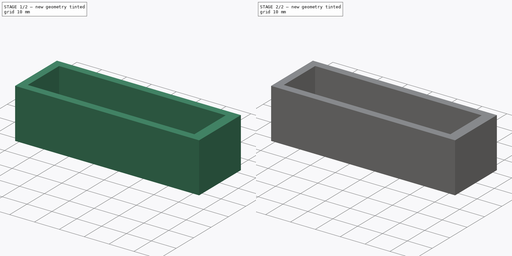
[diagram: build sequence overview — one tinted view per stage of 2, left to right]
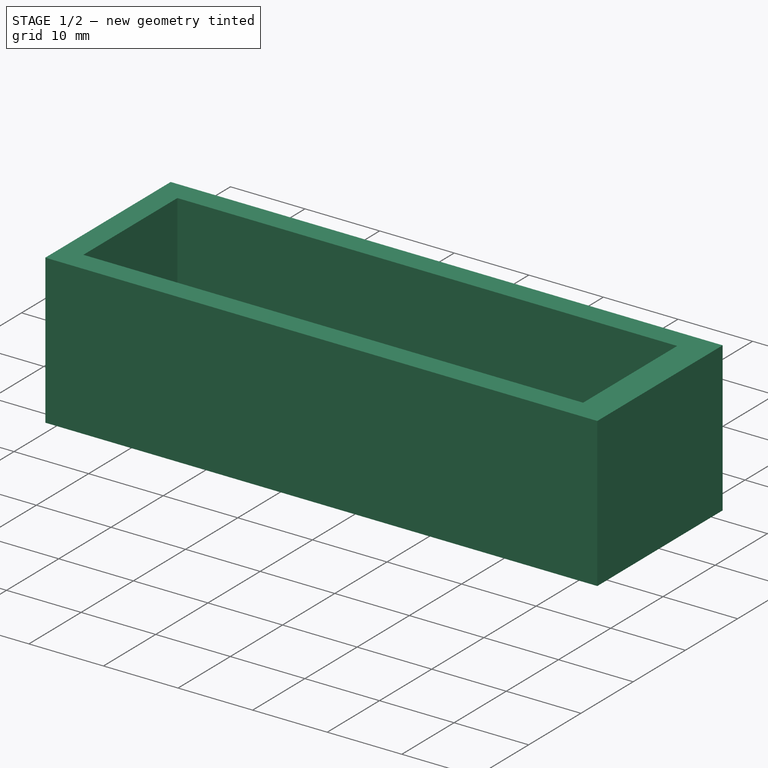
[diagram: stage 1 of 2 — iso view after this stage's code; geometry added in this stage tinted green]
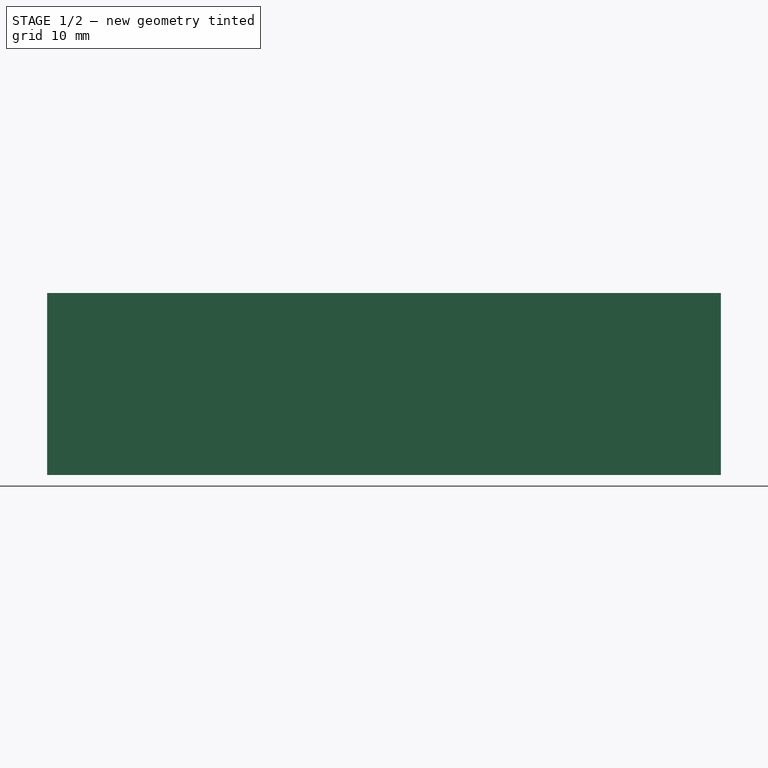
[diagram: stage 1 of 2 — front view after this stage's code; geometry added in this stage tinted green]
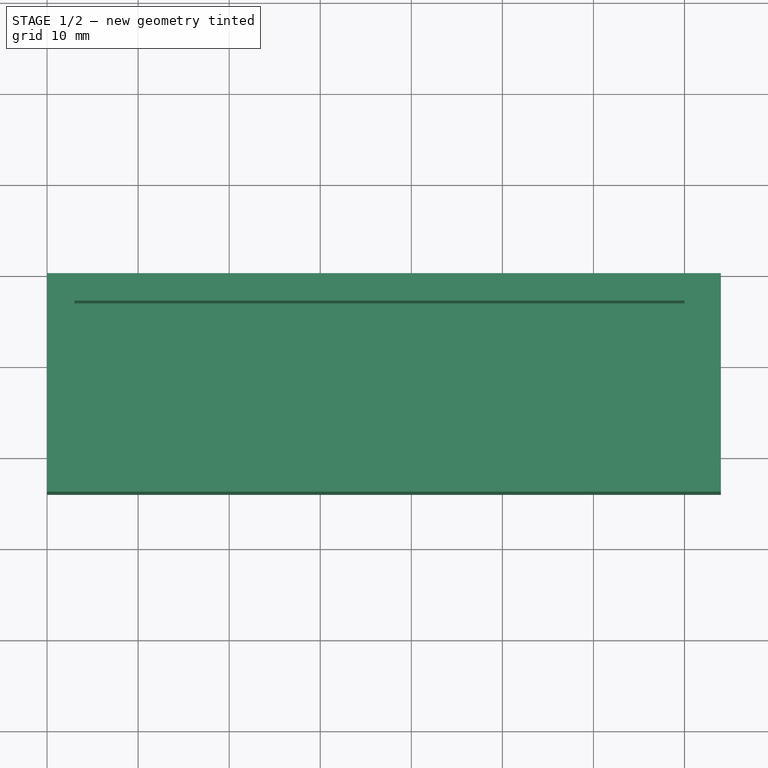
[diagram: stage 1 of 2 — top view after this stage's code; geometry added in this stage tinted green]
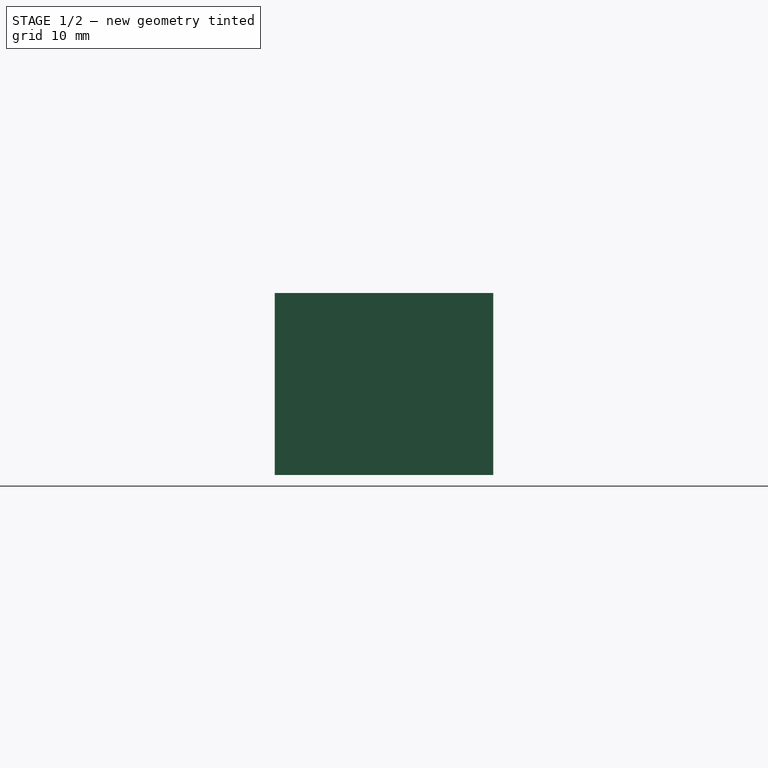
[diagram: stage 1 of 2 — right view after this stage's code; geometry added in this stage tinted green]
FCSTD DOCUMENT  (FreeCAD 0.19R24267 +99 (Git))
Label: Li-ion-cell-holder
License: All rights reserved
LicenseURL: http://en.wikipedia.org/wiki/All_rights_reserved
objects: Sketcher::SketchObject×4, PartDesign::Pocket×3, Spreadsheet::Sheet×1, PartDesign::Pad×1, PartDesign::Body×1
note: 13 computed .brp shape members not serialized (recipe doc carries the construction recipe); baked Part::Feature solids carry a one-line shape summary decoded from their .brp

FEATURE [Sketcher::SketchObject] Sketch  label="external"
  FullyConstrained = true
  MapMode = 5
  Support = -> [XY_Plane]
  expr: Constraints[9] = <<param>>.cell_W + 2 * <<param>>.wall + 2 * <<param>>.space
  expr: Constraints[8] = <<param>>.cell_L + 2 * <<param>>.wall + 5 * <<param>>.space
  sketch-geometry (4):
    g0: LineSegment StartX=0 StartY=0 StartZ=0 EndX=74 EndY=0 EndZ=0
    g1: LineSegment StartX=74 StartY=0 StartZ=0 EndX=74 EndY=-24 EndZ=0
    g2: LineSegment StartX=74 StartY=-24 StartZ=0 EndX=0 EndY=-24 EndZ=0
    g3: LineSegment StartX=0 StartY=-24 StartZ=0 EndX=0 EndY=0 EndZ=0
  constraints (11):
    c: Coincident(g0,g1)
    c: Coincident(g1,g2)
    c: Coincident(g2,g3)
    c: Coincident(g3,g0)
    c: Horizontal(g0)
    c: Horizontal(g2)
    c: Vertical(g1)
    c: Vertical(g3)
    c: DistanceX(g0,g0) = 74
    c: DistanceY(g3,g3) = 24
    c: Coincident(g0,g-1)
FEATURE [Spreadsheet::Sheet] Spreadsheet  label="param"
  cells = A2=cell length; B2(cell_L)=65; A3=cell width; B3(cell_W)=18; A4=wall thickness; B4(wall)=2; A5=array number; B5(array)=1; A6=leeway; B6(space)=1; A7=height; B7(height)=20; A8=hole diameter; B8(hole_diameter)=1.5
FEATURE [PartDesign::Pad] Pad
  Direction = (1,1,1)
  Length = 20
  Length2 = 100
  Profile = -> Sketch
  Refine = true
  Type = 0
  expr: Length = <<param>>.height
FEATURE [Sketcher::SketchObject] Sketch001  label="cell"
  FullyConstrained = true
  MapMode = 5
  Placement = pos=(0,0,20) rot=(0,0,1;0rad)
  Support = -> [Pad]
  expr: Constraints[11] = <<param>>.wall + <<param>>.space
  expr: Constraints[10] = <<param>>.wall + <<param>>.space
  expr: Constraints[9] = <<param>>.cell_W
  expr: Constraints[8] = <<param>>.cell_L + +2 * <<param>>.space
  sketch-geometry (4):
    g0: LineSegment StartX=3 StartY=-3 StartZ=0 EndX=70 EndY=-3 EndZ=0
    g1: LineSegment StartX=70 StartY=-3 StartZ=0 EndX=70 EndY=-21 EndZ=0
    g2: LineSegment StartX=70 StartY=-21 StartZ=0 EndX=3 EndY=-21 EndZ=0
    g3: LineSegment StartX=3 StartY=-21 StartZ=0 EndX=3 EndY=-3 EndZ=0
  constraints (12):
    c: Coincident(g0,g1)
    c: Coincident(g1,g2)
    c: Coincident(g2,g3)
    c: Coincident(g3,g0)
    c: Horizontal(g0)
    c: Horizontal(g2)
    c: Vertical(g1)
    c: Vertical(g3)
    c: DistanceX(g0,g0) = 67
    c: DistanceY(g3,g3) = 18
    c: DistanceX(g-1,g0) = 3
    c: DistanceY(g0,g-1) = 3
FEATURE [PartDesign::Pocket] Pocket
  BaseFeature = -> Pad
  Length = 18
  Length2 = 100
  Profile = -> Sketch001
  Refine = true
  Type = 0
  expr: Length = <<param>>.height - <<param>>.wall
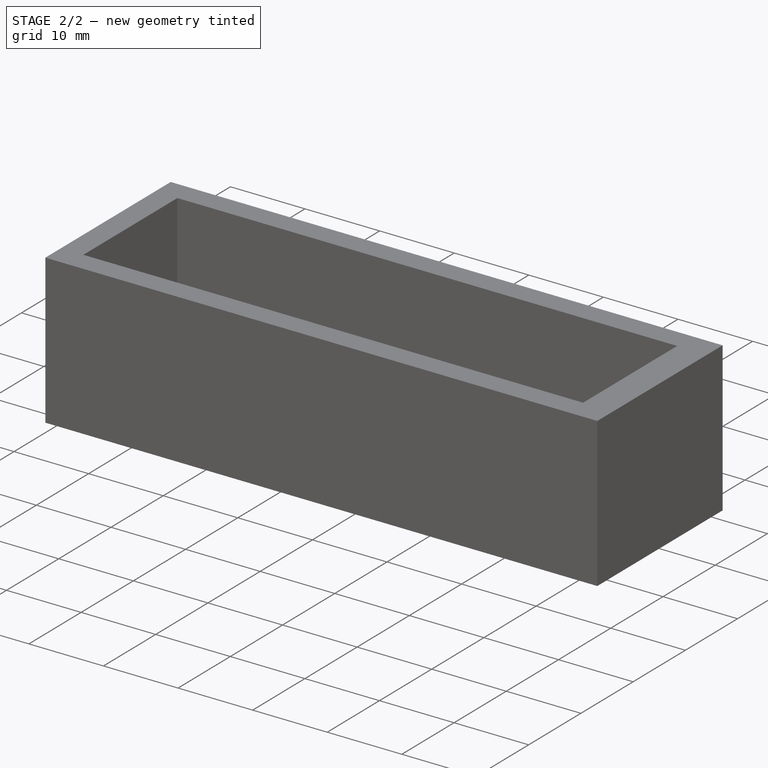
[diagram: stage 2 of 2 — iso view after this stage's code; geometry added in this stage tinted green]
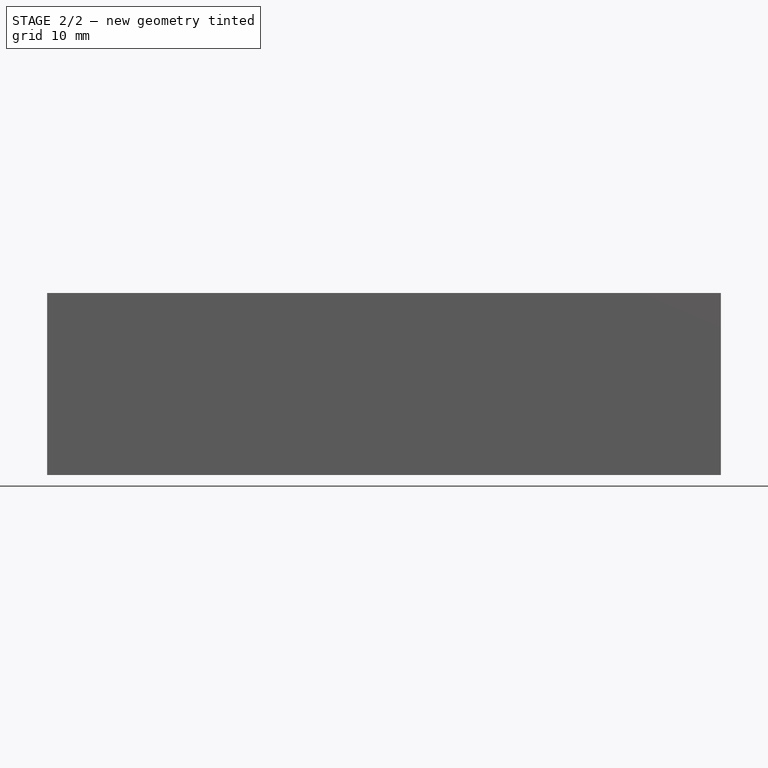
[diagram: stage 2 of 2 — front view after this stage's code; geometry added in this stage tinted green]
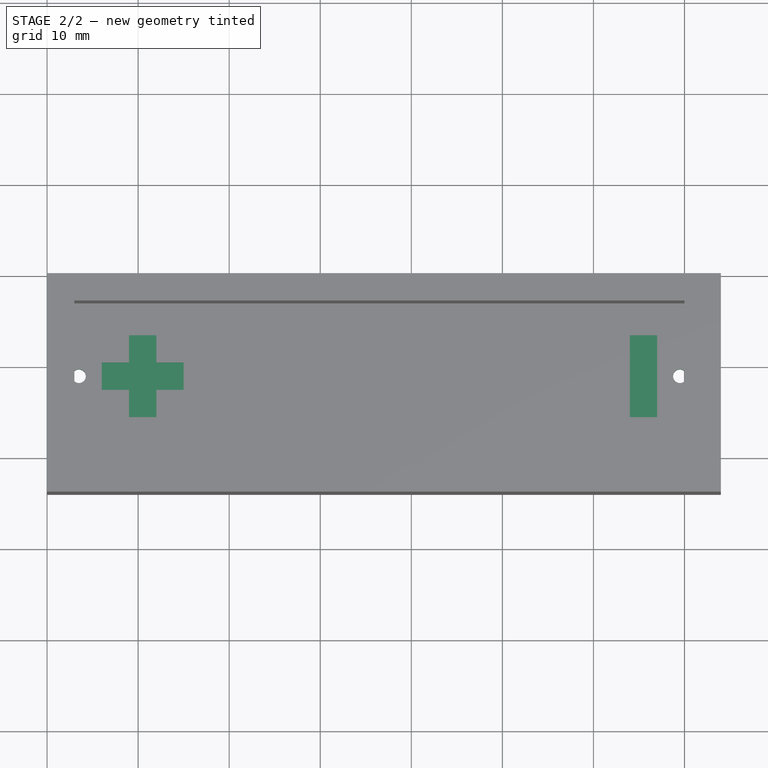
[diagram: stage 2 of 2 — top view after this stage's code; geometry added in this stage tinted green]
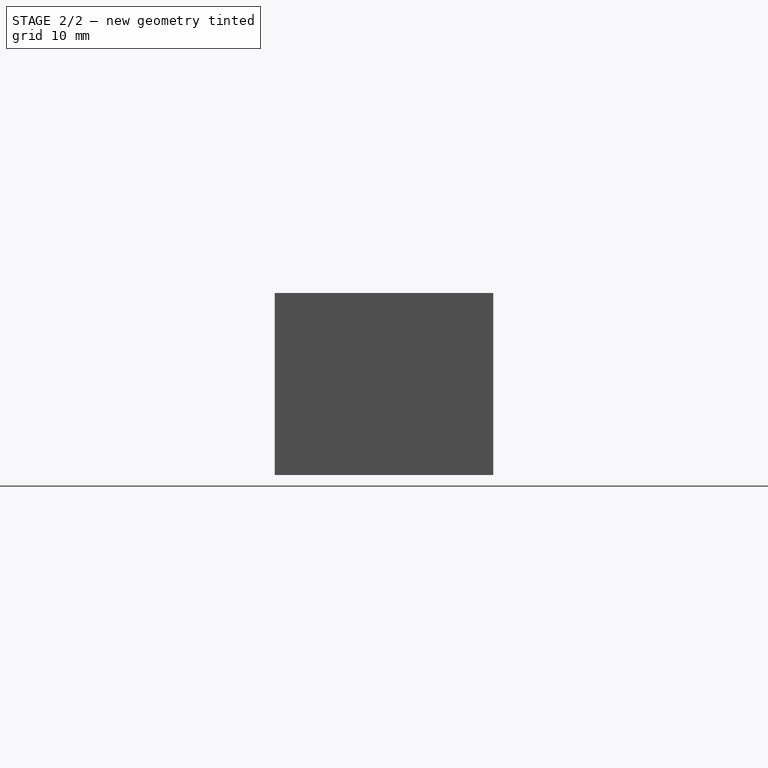
[diagram: stage 2 of 2 — right view after this stage's code; geometry added in this stage tinted green]
FEATURE [Sketcher::SketchObject] Sketch002  label="connector_holes"
  FullyConstrained = true
  MapMode = 5
  Placement = pos=(0,0,2) rot=(0,0,1;0rad)
  Support = -> [Pocket]
  expr: Constraints[7] = <<param>>.cell_W / 2 + <<param>>.wall
  expr: Constraints[6] = <<param>>.wall + 1.5 * <<param>>.space
  expr: Constraints[5] = <<param>>.cell_L + <<param>>.space
  expr: Constraints[1] = <<param>>.hole_diameter
  sketch-geometry (3):
    g0: Circle CenterX=3.5 CenterY=-11 CenterZ=0 NormalX=0 NormalY=0 NormalZ=1 AngleXU=0 Radius=0.75
    g1: Circle CenterX=69.5 CenterY=-11 CenterZ=0 NormalX=0 NormalY=0 NormalZ=1 AngleXU=0 Radius=0.75
    g2: LineSegment StartX=3.5 StartY=-11 StartZ=0 EndX=69.5 EndY=-11 EndZ=0
  constraints (8):
    c: Equal(g1,g0)
    c: Diameter(g1) = 1.5
    c: Coincident(g2,g0)
    c: Coincident(g2,g1)
    c: Horizontal(g2)
    c: DistanceX(g2,g2) = 66
    c: DistanceX(g-1,g0) = 3.5
    c: DistanceY(g0,g-1) = 11
FEATURE [PartDesign::Pocket] Pocket001
  BaseFeature = -> Pocket
  Length = 2
  Length2 = 100
  Profile = -> Sketch002
  Refine = true
  Type = 0
  expr: Length = <<param>>.wall
FEATURE [Sketcher::SketchObject] Sketch003  label="polarity"
  FullyConstrained = true
  MapMode = 5
  Placement = pos=(0,0,2) rot=(0,0,1;0rad)
  Support = -> [Pocket001]
  expr: Constraints[43] = <<param>>.wall + 4 * <<param>>.space
  expr: Constraints[42] = <<param>>.cell_W / 2 + <<param>>.wall - 1.5
  sketch-geometry (21):
    g0: LineSegment StartX=9 StartY=-9.5 StartZ=0 EndX=12 EndY=-9.5 EndZ=0
    g1: LineSegment StartX=12 StartY=-9.5 StartZ=0 EndX=12 EndY=-12.5 EndZ=0
    g2: LineSegment StartX=12 StartY=-12.5 StartZ=0 EndX=9 EndY=-12.5 EndZ=0
    g3: LineSegment StartX=9 StartY=-12.5 StartZ=0 EndX=9 EndY=-9.5 EndZ=0
    g4: LineSegment StartX=9 StartY=-9.5 StartZ=0 EndX=9 EndY=-6.5 EndZ=0
    g5: LineSegment StartX=9 StartY=-6.5 StartZ=0 EndX=12 EndY=-6.5 EndZ=0
    g6: LineSegment StartX=12 StartY=-6.5 StartZ=0 EndX=12 EndY=-9.5 EndZ=0
    g7: LineSegment StartX=12 StartY=-9.5 StartZ=0 EndX=15 EndY=-9.5 EndZ=0
    g8: LineSegment StartX=15 StartY=-9.5 StartZ=0 EndX=15 EndY=-12.5 EndZ=0
    g9: LineSegment StartX=15 StartY=-12.5 StartZ=0 EndX=12 EndY=-12.5 EndZ=0
    g10: LineSegment StartX=12 StartY=-12.5 StartZ=0 EndX=12 EndY=-15.5 EndZ=0
    g11: LineSegment StartX=12 StartY=-15.5 StartZ=0 EndX=9 EndY=-15.5 EndZ=0
    g12: LineSegment StartX=9 StartY=-15.5 StartZ=0 EndX=9 EndY=-12.5 EndZ=0
    g13: LineSegment StartX=9 StartY=-12.5 StartZ=0 EndX=6 EndY=-12.5 EndZ=0
    g14: LineSegment StartX=6 StartY=-12.5 StartZ=0 EndX=6 EndY=-9.5 EndZ=0
    g15: LineSegment StartX=6 StartY=-9.5 StartZ=0 EndX=9 EndY=-9.5 EndZ=0
    g16: LineSegment StartX=64 StartY=-6.5 StartZ=0 EndX=67 EndY=-6.5 EndZ=0
    g17: LineSegment StartX=67 StartY=-6.5 StartZ=0 EndX=67 EndY=-15.5 EndZ=0
    g18: LineSegment StartX=67 StartY=-15.5 StartZ=0 EndX=64 EndY=-15.5 EndZ=0
    g19: LineSegment StartX=64 StartY=-15.5 StartZ=0 EndX=64 EndY=-6.5 EndZ=0
    g20: LineSegment StartX=12 StartY=-6.5 StartZ=0 EndX=64 EndY=-6.5 EndZ=0
  constraints (58):
    c: Coincident(g0,g1)
    c: Coincident(g1,g2)
    c: Coincident(g2,g3)
    c: Coincident(g3,g0)
    c: Horizontal(g0)
    c: Horizontal(g2)
    c: Vertical(g1)
    c: Vertical(g3)
    c: Equal(g1,g0)
    c: Coincident(g4,g0)
    c: Vertical(g4)
    c: Coincident(g5,g4)
    c: Horizontal(g5)
    c: Coincident(g6,g5)
    c: Coincident(g6,g0)
    c: Vertical(g6)
    c: Coincident(g6,g7)
    c: Coincident(g7,g8)
    c: Vertical(g8)
    c: Coincident(g8,g9)
    c: Coincident(g9,g1)
    c: Horizontal(g9)
    c: Coincident(g9,g10)
    c: Vertical(g10)
    c: Coincident(g10,g11)
    c: Horizontal(g11)
    c: Coincident(g11,g12)
    c: Coincident(g12,g2)
    c: Vertical(g12)
    c: Coincident(g12,g13)
    c: Horizontal(g13)
    c: Coincident(g13,g14)
    c: Vertical(g14)
    c: Coincident(g14,g15)
    c: Coincident(g15,g4)
    c: Horizontal(g15)
    c: Horizontal(g7)
    c: Equal(g7,g6)
    c: Equal(g6,g15)
    c: Equal(g15,g11)
    c: Equal(g8,g10)
    c: DistanceY(g14,g14) = 3
    c: DistanceY(g14,g-1) = 9.5
    c: DistanceX(g-1,g14) = 6
    c: Coincident(g16,g17)
    c: Coincident(g17,g18)
    c: Coincident(g18,g19)
    c: Coincident(g19,g16)
    c: Horizontal(g16)
    c: Horizontal(g18)
    c: Vertical(g17)
    c: Vertical(g19)
    c: Equal(g5,g16)
    c: DistanceY(g17,g17) = 9
    c: Coincident(g20,g5)
    c: Coincident(g20,g16)
    c: Horizontal(g20)
    c: DistanceX(g20,g20) = 52
FEATURE [PartDesign::Pocket] Pocket002
  BaseFeature = -> Pocket001
  Length = 0.4
  Length2 = 100
  Profile = -> Sketch003
  Refine = true
  Type = 0
  expr: Length = <<param>>.wall / 5
FEATURE [PartDesign::Body] Body
  Group = -> [Sketch,Pad,Sketch001,Pocket,Sketch002,Pocket001,Sketch003,Pocket002]
  Origin = -> Origin
  Tip = -> Pocket002
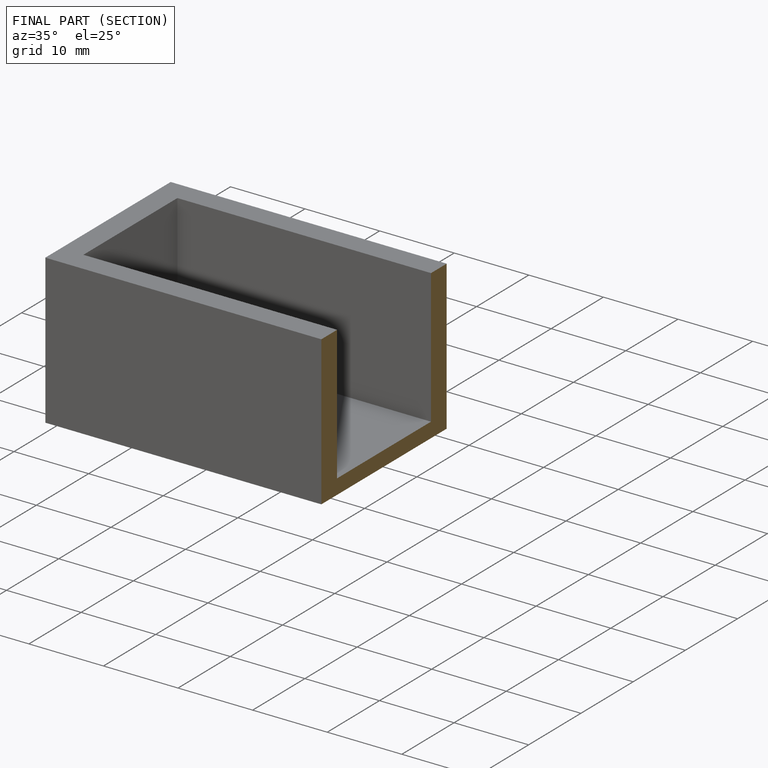
[diagram: finished part — half-section view (interior)]
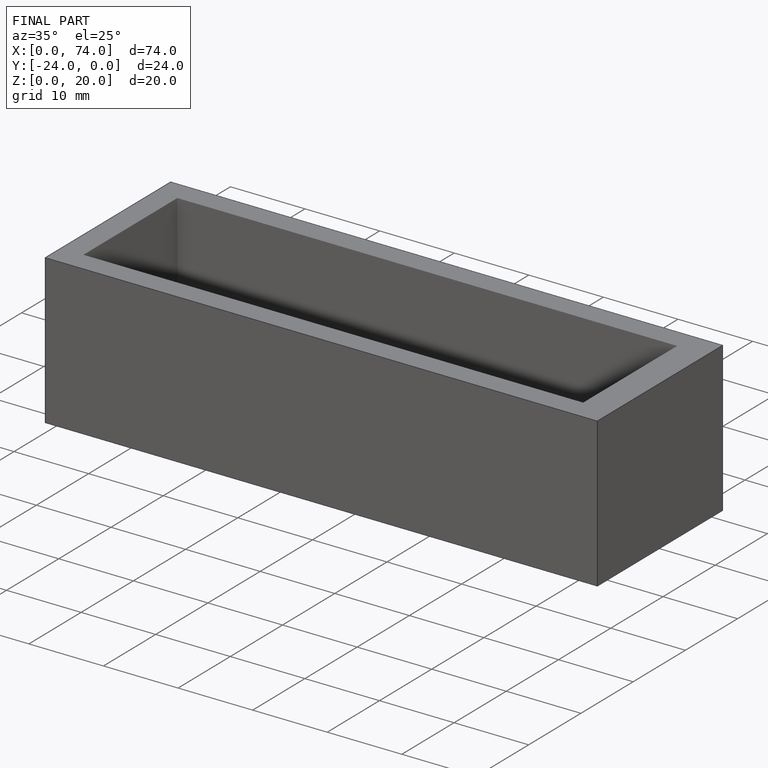
[diagram: finished part — iso view with bounding-box wireframe]
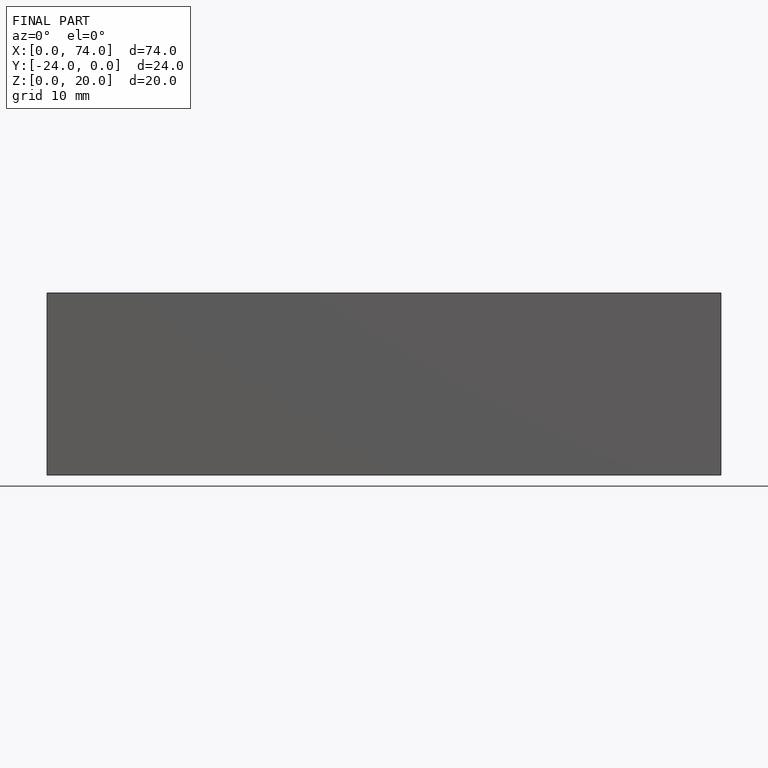
[diagram: finished part — front view with bounding-box wireframe]
